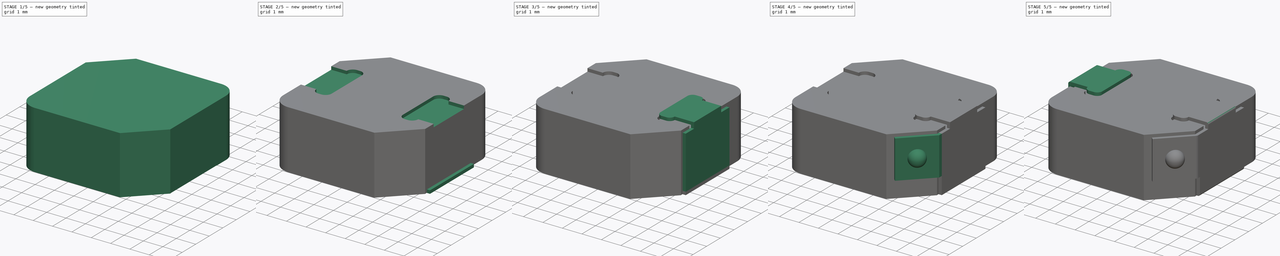
[diagram: build sequence overview — one tinted view per stage of 5, left to right]
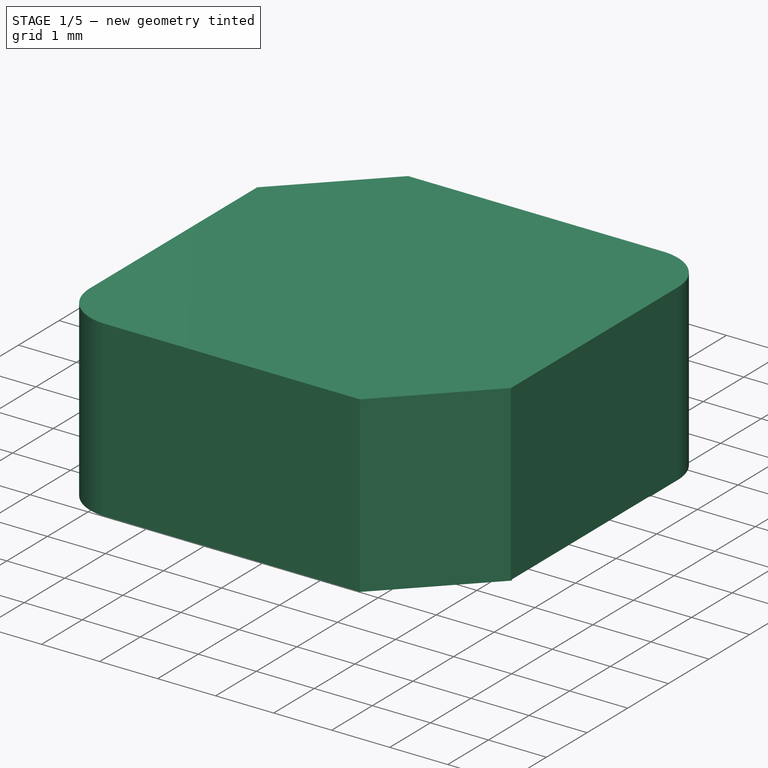
[diagram: stage 1 of 5 — iso view after this stage's code; geometry added in this stage tinted green]
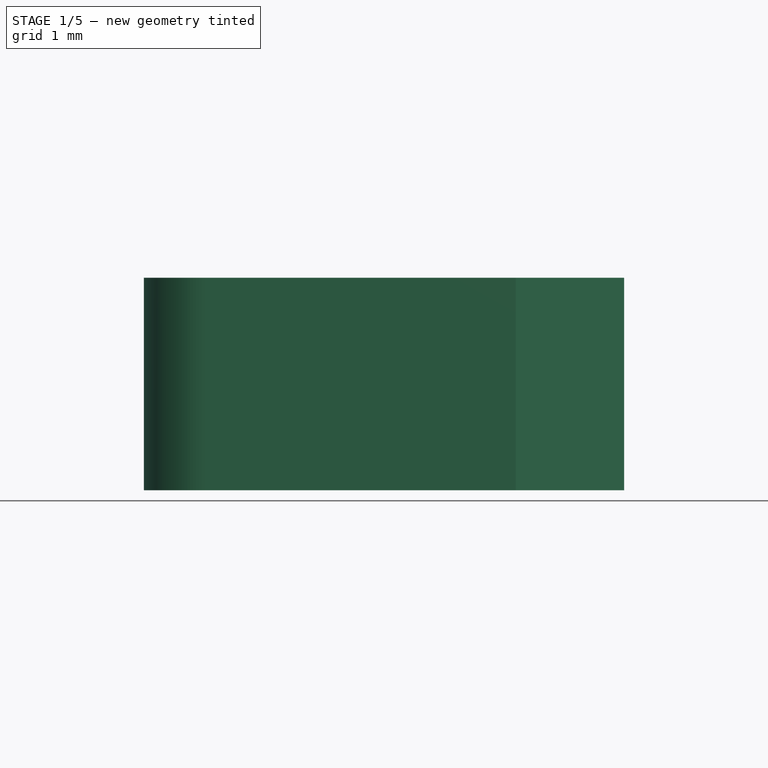
[diagram: stage 1 of 5 — front view after this stage's code; geometry added in this stage tinted green]
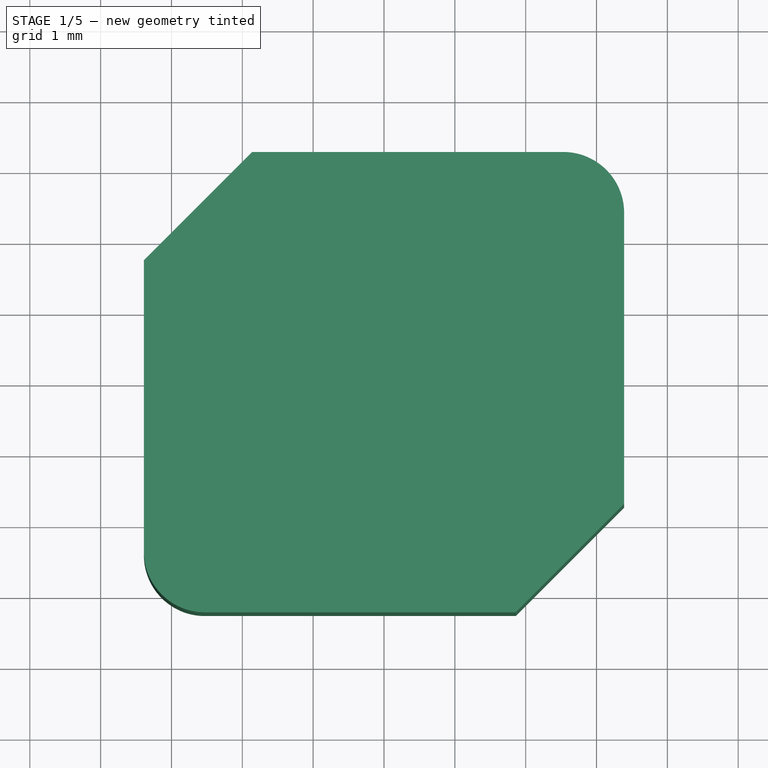
[diagram: stage 1 of 5 — top view after this stage's code; geometry added in this stage tinted green]
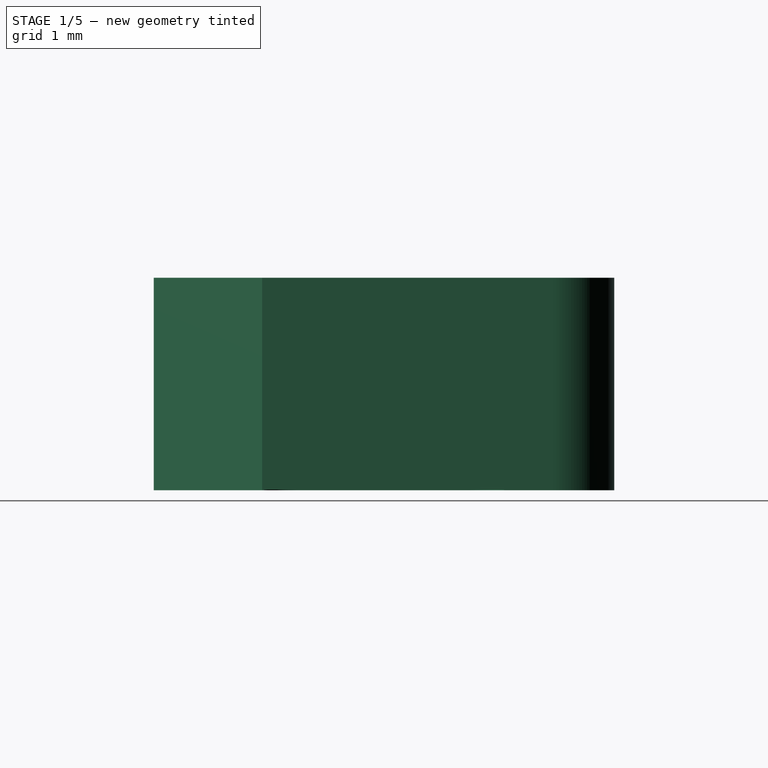
[diagram: stage 1 of 5 — right view after this stage's code; geometry added in this stage tinted green]
FCSTD DOCUMENT  (FreeCAD 1.0R38641 +468 (Git))
Label: spm6530-1
License: All rights reserved
objects: Sketcher::SketchObject×9, PartDesign::Pad×5, PartDesign::Pocket×4, PartDesign::Fillet×2, PartDesign::Body×2, PartDesign::Mirrored×2, Spreadsheet::Sheet×1, PartDesign::AdditiveSphere×1, Part::FeaturePython×1
note: 61 computed .brp shape members not serialized (recipe doc carries the construction recipe); baked Part::Feature solids carry a one-line shape summary decoded from their .brp

FEATURE [Sketcher::SketchObject] Sketch008
  ArcFitTolerance = 0
  AttachmentSupport = -> [XY_Plane001]
  FullyConstrained = true
  MakeInternals = false
  MapMode = 5
  expr: Constraints[36] = <<Master>>.thick
  expr: Constraints[37] = <<Master>>.chamfer
  expr: Constraints[38] = <<Master>>.width
  expr: Constraints[39] = <<Master>>.length
  sketch-geometry (14):
    g0: LineSegment StartX=2.53 StartY=3.25 StartZ=0 EndX=-1.86 EndY=3.25 EndZ=0
    g1: LineSegment StartX=-1.86 StartY=3.25 StartZ=0 EndX=-3.39 EndY=1.72 EndZ=0
    g2: LineSegment StartX=-3.39 StartY=1.72 StartZ=0 EndX=-3.39 EndY=-2.39 EndZ=0
    g3: LineSegment StartX=3.39 StartY=2.39 StartZ=0 EndX=3.39 EndY=-1.72 EndZ=0
    g4: LineSegment StartX=3.39 StartY=-1.72 StartZ=0 EndX=1.86 EndY=-3.25 EndZ=0
    g5: LineSegment StartX=1.86 StartY=-3.25 StartZ=0 EndX=-2.53 EndY=-3.25 EndZ=0
    g6: ArcOfCircle CenterX=2.53 CenterY=2.39 CenterZ=0 NormalX=0 NormalY=0 NormalZ=1 AngleXU=0 Radius=0.86 StartAngle=6.28319 EndAngle=7.85398
    g7: ArcOfCircle CenterX=-2.53 CenterY=-2.39 CenterZ=0 NormalX=0 NormalY=0 NormalZ=1 AngleXU=0 Radius=0.86 StartAngle=3.14159 EndAngle=4.71239
    g8: LineSegment [constr] StartX=-3.39 StartY=1.72 StartZ=0 EndX=-3.55 EndY=1.72 EndZ=0
    g9: LineSegment [constr] StartX=3.39 StartY=2.39 StartZ=0 EndX=3.55 EndY=2.39 EndZ=0
    g10: LineSegment [constr] StartX=1.86 StartY=-3.25 StartZ=0 EndX=3.39 EndY=-3.25 EndZ=0
    g11: LineSegment [constr] StartX=3.39 StartY=-1.72 StartZ=0 EndX=3.39 EndY=-3.25 EndZ=0
    g12: LineSegment [constr] StartX=-1.86 StartY=3.25 StartZ=0 EndX=-3.39 EndY=3.25 EndZ=0
    g13: LineSegment [constr] StartX=-3.39 StartY=3.25 StartZ=0 EndX=-3.39 EndY=1.72 EndZ=0
  constraints (41):
    c: Coincident(g0,g1)
    c: Coincident(g1,g2)
    c: Coincident(g3,g4)
    c: Coincident(g4,g5)
    c: Vertical(g3)
    c: Horizontal(g0)
    c: Vertical(g2)
    c: Coincident(g7,g2)
    c: Coincident(g7,g5)
    c: Horizontal(g5)
    c: Coincident(g0,g6)
    c: Coincident(g3,g6)
    c: Coincident(g8,g1)
    c: Horizontal(g8)
    c: Coincident(g9,g3)
    c: Horizontal(g9)
    c: Equal(g8,g9)
    c: Equal(g1,g4)
    c: Equal(g7,g6)
    c: Tangent(g2,g7)
    c: Tangent(g7,g5)
    c: Tangent(g0,g6)
    c: Tangent(g6,g3)
    c: Radius(g7) = 0.86
    c: Coincident(g10,g4)
    c: Horizontal(g10)
    c: Coincident(g11,g3)
    c: Coincident(g10,g11)
    c: Vertical(g11)
    c: Equal(g10,g11)
    c: Coincident(g12,g0)
    c: Horizontal(g12)
    c: Coincident(g13,g12)
    c: Coincident(g13,g1)
    c: Vertical(g13)
    c: Equal(g12,g13)
    c: Distance(g9,g9) = 0.16
    c: Distance(g12,g12) = 1.53
    c: DistanceY(g10,g0) = 6.5
    c: DistanceX(g8,g9) = 7.1
    c: Symmetric(g12,g10,g-1)
FEATURE [PartDesign::Pad] Pad004
  Direction = (0,0,1)
  Length = 3
  Length2 = 10
  Profile = -> Sketch008
  ReferenceAxis = -> Sketch008 [N_Axis]
  Suppressed = false
  Type = 0
  expr: Length = <<Master>>.height
FEATURE [Sketcher::SketchObject] Sketch001
  ArcFitTolerance = 0
  AttachmentSupport = -> [XY_Plane001]
  FullyConstrained = true
  MakeInternals = false
  MapMode = 5
  expr: Constraints[17] = <<Master>>.length / 2
  sketch-geometry (6):
    g0: LineSegment StartX=3.55 StartY=1.695 StartZ=0 EndX=2.29 EndY=1.695 EndZ=0
    g1: LineSegment StartX=3.55 StartY=1.695 StartZ=0 EndX=3.55 EndY=-1.695 EndZ=0
    g2: LineSegment StartX=3.55 StartY=-1.695 StartZ=0 EndX=2.29 EndY=-1.695 EndZ=0
    g3: ArcOfCircle CenterX=2.29 CenterY=1.215 CenterZ=0 NormalX=0 NormalY=0 NormalZ=1 AngleXU=0 Radius=0.48 StartAngle=1.5708 EndAngle=3.14159
    g4: ArcOfCircle CenterX=2.29 CenterY=-1.215 CenterZ=0 NormalX=0 NormalY=0 NormalZ=1 AngleXU=0 Radius=0.48 StartAngle=3.14159 EndAngle=4.71239
    g5: LineSegment StartX=1.81 StartY=1.215 StartZ=0 EndX=1.81 EndY=-1.215 EndZ=0
  constraints (19):
    c: Horizontal(g0)
    c: Coincident(g0,g1)
    c: Coincident(g1,g2)
    c: Horizontal(g2)
    c: Coincident(g3,g0)
    c: Coincident(g4,g2)
    c: Coincident(g5,g3)
    c: Coincident(g5,g4)
    c: Vertical(g5)
    c: Equal(g0,g2)
    c: Equal(g3,g4)
    c: Tangent(g3,g5)
    c: Tangent(g5,g4)
    c: Tangent(g3,g0)
    c: DistanceX(g4,g1) = 1.74
    c: Symmetric(g0,g1,g-1)
    c: Radius(g3) = 0.48
    c: DistanceX(g-1,g1) = 3.55
    c: DistanceY(g1,g1) = 3.39
FEATURE [PartDesign::Pocket] Pocket002
  BaseFeature = -> Pad004
  Direction = (0,0,-1)
  Length = 0.01
  Length2 = 5
  Profile = -> Sketch001
  ReferenceAxis = -> Sketch001 [N_Axis]
  Reversed = true
  Suppressed = false
  Type = 0
  expr: Length = <<Master>>.thick - <<Master>>.offset
FEATURE [PartDesign::Mirrored] Mirrored
  BaseFeature = -> Pocket002
  MirrorPlane = -> Sketch001 [V_Axis]
  Originals = -> [Pocket002]
  Suppressed = false
  TransformMode = 0
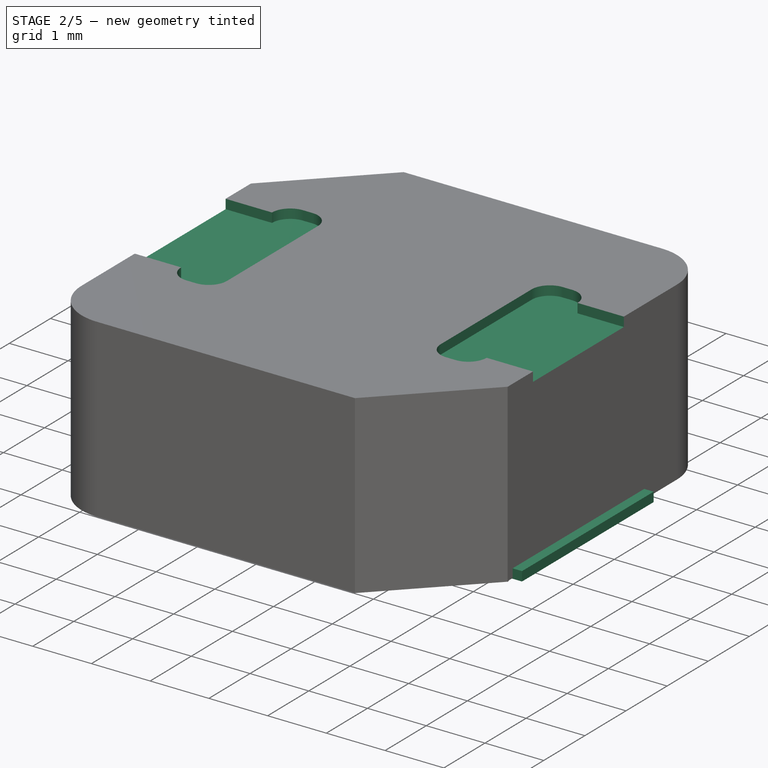
[diagram: stage 2 of 5 — iso view after this stage's code; geometry added in this stage tinted green]
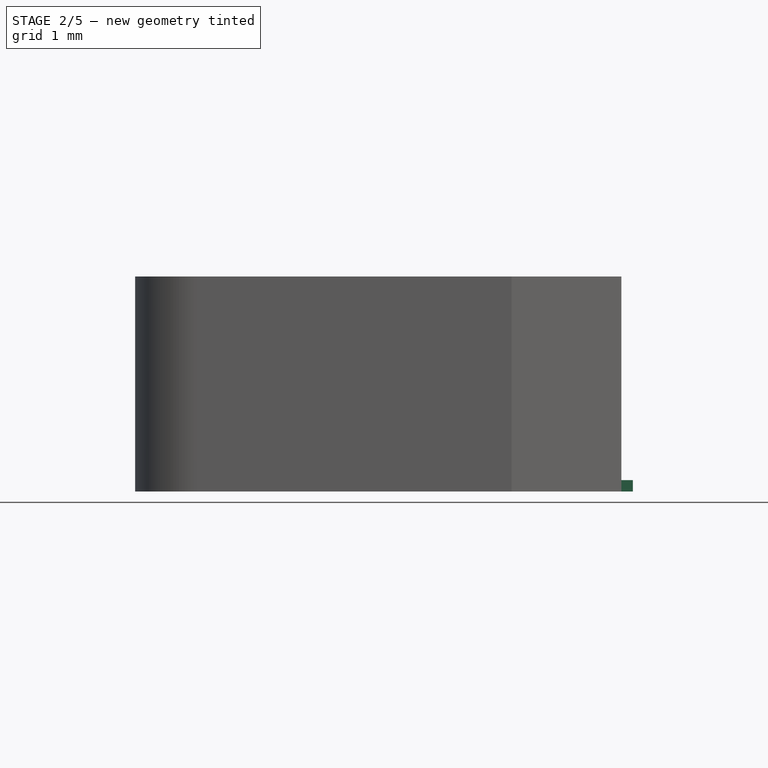
[diagram: stage 2 of 5 — front view after this stage's code; geometry added in this stage tinted green]
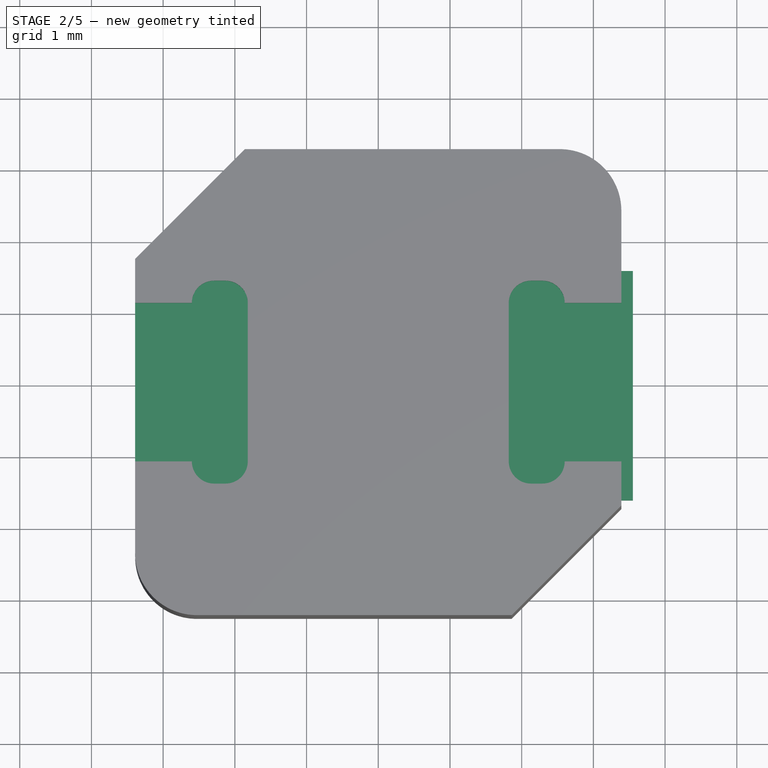
[diagram: stage 2 of 5 — top view after this stage's code; geometry added in this stage tinted green]
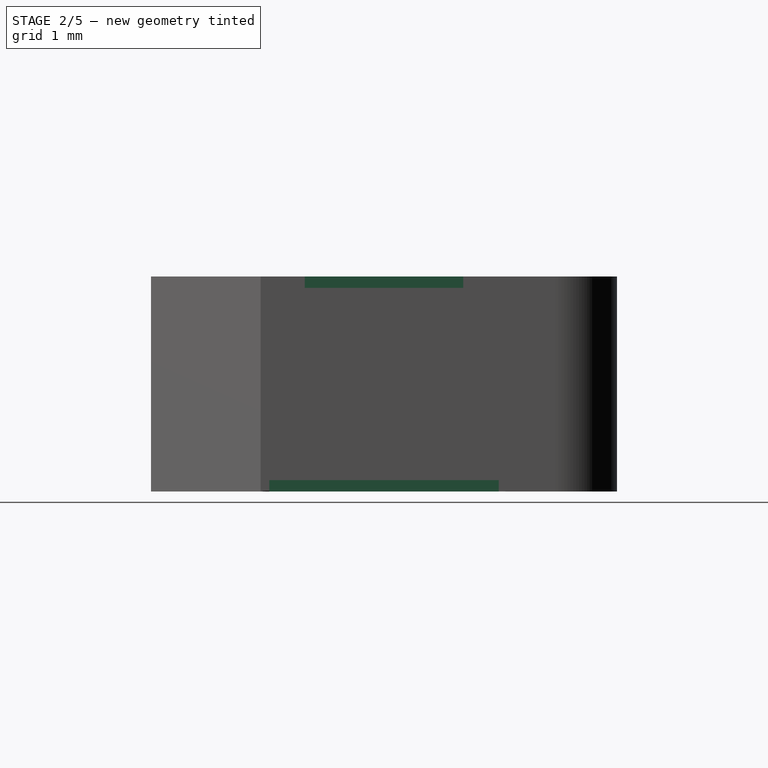
[diagram: stage 2 of 5 — right view after this stage's code; geometry added in this stage tinted green]
FEATURE [Spreadsheet::Sheet] Spreadsheet  label="Master"
  cells = A1='Constants; A2='length; B2(length)==7.1 mm; C2='Length including pins (x); A3='width; B3(width)==6.5 mm; C3='Width of housing (y); A4='height; B4(height)==3 mm; C4='Height of ferrite (z); A5='offset; B5(offset)==0.15 mm; C5='Offset to bottom of ferrite; A6='chamfer; B6(chamfer)==1.53 mm; C6='Body corner chamfer; A8='pin bot width; B8(pin_bot_w)==3.2 mm; C8='Width of pin bottom (y); A9='thick; B9(thick)==0.16 mm; C9='Thickness of pins; A10='pin top width; B10(pin_top_w)==1.99 mm; C10='Width of pin top (y); A12='Calculated; A13='ferrite length; B13(ferrite_l)==length - 2 * thick; C13='Length of ferrite; A14='top; B14(top)==height + offset; C14='Top of part
FEATURE [Sketcher::SketchObject] Sketch003
  ArcFitTolerance = 0
  AttachmentSupport = -> [XY_Plane]
  FullyConstrained = true
  MakeInternals = false
  MapMode = 5
  expr: Constraints[17] = <<Master>>.length / 2
  expr: Constraints[18] = <<Master>>.pin_bot_w
  sketch-geometry (6):
    g0: LineSegment StartX=3.55 StartY=1.6 StartZ=0 EndX=2.29 EndY=1.6 EndZ=0
    g1: LineSegment StartX=3.55 StartY=1.6 StartZ=0 EndX=3.55 EndY=-1.6 EndZ=0
    g2: LineSegment StartX=3.55 StartY=-1.6 StartZ=0 EndX=2.29 EndY=-1.6 EndZ=0
    g3: ArcOfCircle CenterX=2.29 CenterY=1.31 CenterZ=0 NormalX=0 NormalY=0 NormalZ=1 AngleXU=0 Radius=0.29 StartAngle=1.5708 EndAngle=3.14159
    g4: ArcOfCircle CenterX=2.29 CenterY=-1.31 CenterZ=0 NormalX=0 NormalY=0 NormalZ=1 AngleXU=0 Radius=0.29 StartAngle=3.14159 EndAngle=4.71239
    g5: LineSegment StartX=2 StartY=1.31 StartZ=0 EndX=2 EndY=-1.31 EndZ=0
  constraints (19):
    c: Horizontal(g0)
    c: Coincident(g0,g1)
    c: Coincident(g1,g2)
    c: Horizontal(g2)
    c: Coincident(g3,g0)
    c: Coincident(g4,g2)
    c: Coincident(g5,g3)
    c: Coincident(g5,g4)
    c: Vertical(g5)
    c: Equal(g0,g2)
    c: Equal(g3,g4)
    c: Tangent(g3,g5)
    c: Tangent(g5,g4)
    c: Tangent(g3,g0)
    c: Symmetric(g0,g1,g-1)
    c: Radius(g3) = 0.29
    c: DistanceX(g4,g1) = 1.55
    c: DistanceX(g-1,g1) = 3.55
    c: DistanceY(g1,g1) = 3.2
FEATURE [PartDesign::Pad] Pad
  Direction = (0,0,1)
  Length = 0.16
  Length2 = 10
  Profile = -> Sketch003
  ReferenceAxis = -> Sketch003 [N_Axis]
  Suppressed = false
  Type = 0
  expr: Length = <<Master>>.thick
FEATURE [Sketcher::SketchObject] Sketch002
  ArcFitTolerance = 0
  AttachmentOffset = pos=(0,0,3) rot=(0,0,1;0rad)
  AttachmentSupport = -> [XY_Plane001]
  FullyConstrained = true
  MakeInternals = false
  MapMode = 5
  Placement = pos=(0,0,3) rot=(0,0,1;0rad)
  expr: .AttachmentOffset.Base.z = <<Master>>.height
  expr: Constraints[32] = <<Master>>.length / 2
  sketch-geometry (10):
    g0: LineSegment StartX=2.6 StartY=1.105 StartZ=0 EndX=3.55 EndY=1.105 EndZ=0
    g1: LineSegment StartX=3.55 StartY=1.105 StartZ=0 EndX=3.55 EndY=-1.105 EndZ=0
    g2: LineSegment StartX=3.55 StartY=-1.105 StartZ=0 EndX=2.6 EndY=-1.105 EndZ=0
    g3: ArcOfCircle CenterX=2.29 CenterY=-1.105 CenterZ=0 NormalX=0 NormalY=0 NormalZ=1 AngleXU=0 Radius=0.31 StartAngle=4.71239 EndAngle=6.28319
    g4: LineSegment StartX=2.29 StartY=-1.415 StartZ=0 EndX=2.13 EndY=-1.415 EndZ=0
    g5: ArcOfCircle CenterX=2.13 CenterY=-1.105 CenterZ=0 NormalX=0 NormalY=0 NormalZ=1 AngleXU=0 Radius=0.31 StartAngle=3.14159 EndAngle=4.71239
    g6: ArcOfCircle CenterX=2.29 CenterY=1.105 CenterZ=0 NormalX=0 NormalY=0 NormalZ=1 AngleXU=0 Radius=0.31 StartAngle=-9e-16 EndAngle=1.5708
    g7: LineSegment StartX=2.29 StartY=1.415 StartZ=0 EndX=2.13 EndY=1.415 EndZ=0
    g8: ArcOfCircle CenterX=2.13 CenterY=1.105 CenterZ=0 NormalX=0 NormalY=0 NormalZ=1 AngleXU=0 Radius=0.31 StartAngle=1.5708 EndAngle=3.14159
    g9: LineSegment StartX=1.82 StartY=1.105 StartZ=0 EndX=1.82 EndY=-1.105 EndZ=0
  constraints (33):
    c: Horizontal(g0)
    c: Coincident(g0,g1)
    c: Coincident(g1,g2)
    c: Horizontal(g2)
    c: Coincident(g4,g3)
    c: Horizontal(g4)
    c: Coincident(g5,g4)
    c: Coincident(g6,g0)
    c: Coincident(g7,g6)
    c: Horizontal(g7)
    c: Tangent(g7,g6)
    c: Coincident(g8,g7)
    c: Coincident(g9,g8)
    c: Coincident(g9,g5)
    c: Vertical(g9)
    c: Equal(g7,g4)
    c: Coincident(g2,g3)
    c: Perpendicular(g6,g0)
    c: Perpendicular(g2,g3)
    c: Equal(g8,g5)
    c: Tangent(g8,g9)
    c: Tangent(g9,g5)
    c: Equal(g6,g3)
    c: Equal(g6,g8)
    c: Tangent(g4,g3)
    c: Tangent(g5,g4)
    c: Equal(g0,g2)
    c: Symmetric(g0,g1,g-1)
    c: Radius(g3) = 0.31
    c: DistanceX(g0) = 0.95
    c: DistanceX(g8,g0) = 1.73
    c: DistanceY(g1,g1) = 2.21
    c: DistanceX(g-1,g1) = 3.55
FEATURE [PartDesign::Pocket] Pocket003
  BaseFeature = -> Mirrored
  Direction = (0,0,-1)
  Length = 0.16
  Length2 = 5
  Profile = -> Sketch002
  ReferenceAxis = -> Sketch002 [N_Axis]
  Suppressed = false
  Type = 0
  expr: Length = <<Master>>.thick
FEATURE [PartDesign::Mirrored] Mirrored001
  BaseFeature = -> Pocket003
  MirrorPlane = -> Sketch002 [V_Axis]
  Originals = -> [Pocket003]
  Suppressed = false
  TransformMode = 0
FEATURE [PartDesign::Body] Body001
  AllowCompound = false
  Group = -> [Sketch008,Pad004,Sketch001,Pocket002,Mirrored,Sketch002,Pocket003,Mirrored001]
  Origin = -> Origin001
  Placement = pos=(0,0,0.15) rot=(0,0,1;0rad)
  Tip = -> Mirrored001
  expr: .Placement.Base.z = <<Master>>.offset
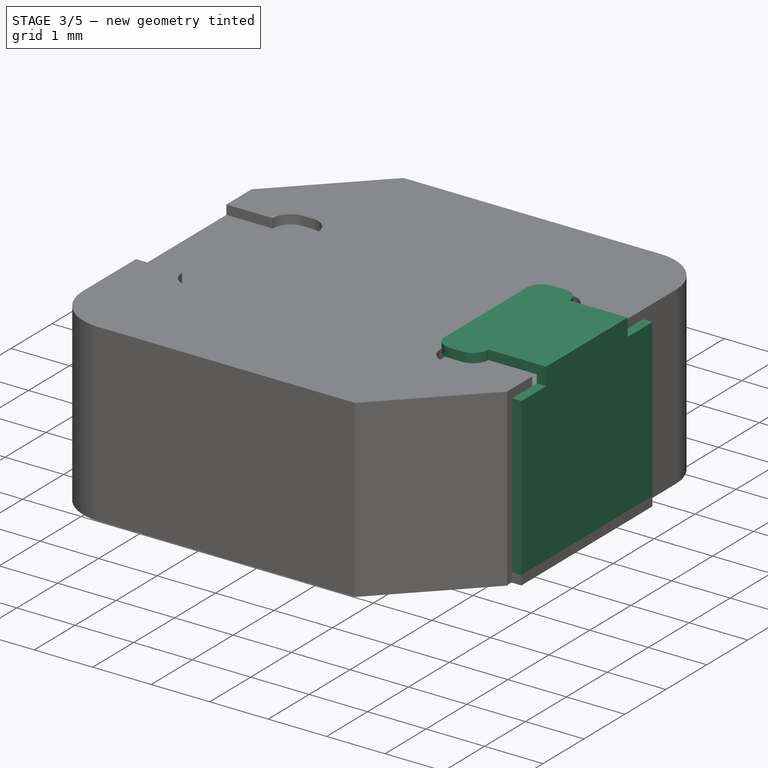
[diagram: stage 3 of 5 — iso view after this stage's code; geometry added in this stage tinted green]
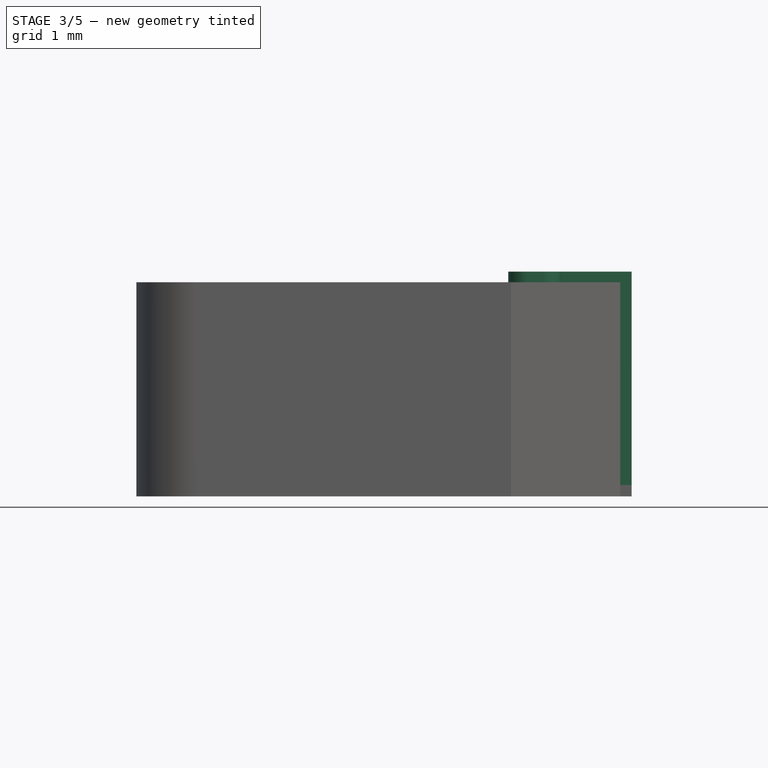
[diagram: stage 3 of 5 — front view after this stage's code; geometry added in this stage tinted green]
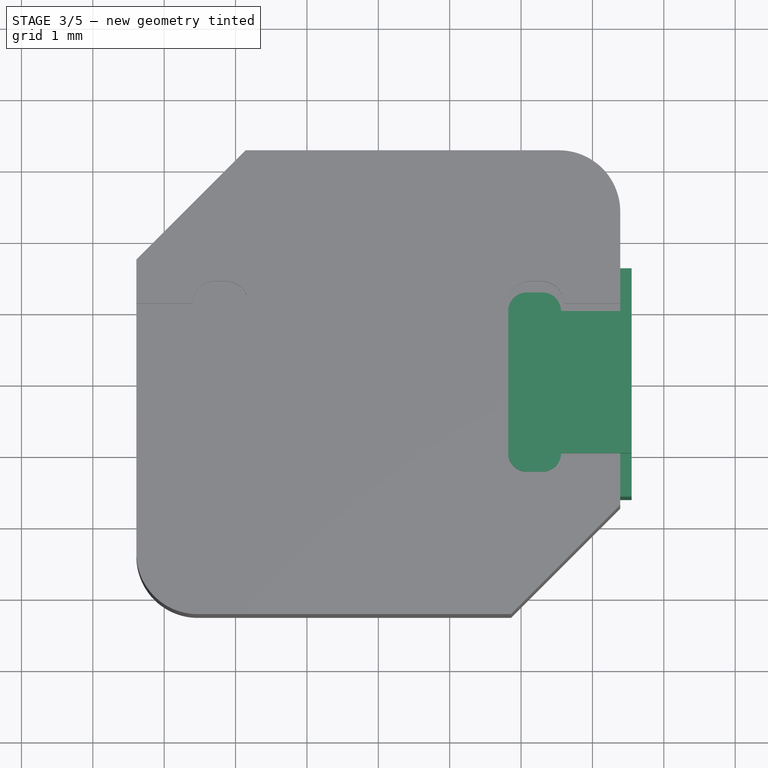
[diagram: stage 3 of 5 — top view after this stage's code; geometry added in this stage tinted green]
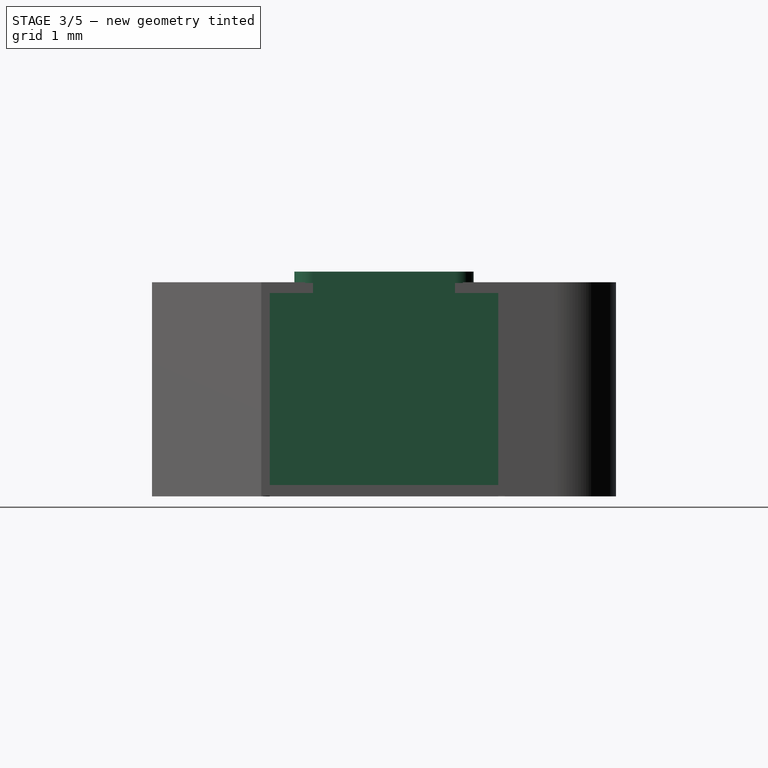
[diagram: stage 3 of 5 — right view after this stage's code; geometry added in this stage tinted green]
FEATURE [Sketcher::SketchObject] Sketch004
  ArcFitTolerance = 0
  AttachmentSupport = -> [XY_Plane]
  FullyConstrained = true
  MakeInternals = false
  MapMode = 5
  expr: Constraints[10] = <<Master>>.length / 2
  expr: Constraints[7] = <<Master>>.thick
  expr: Constraints[9] = <<Master>>.pin_bot_w
  sketch-geometry (4):
    g0: LineSegment StartX=3.55 StartY=1.6 StartZ=0 EndX=3.39 EndY=1.6 EndZ=0
    g1: LineSegment StartX=3.39 StartY=1.6 StartZ=0 EndX=3.39 EndY=-1.6 EndZ=0
    g2: LineSegment StartX=3.39 StartY=-1.6 StartZ=0 EndX=3.55 EndY=-1.6 EndZ=0
    g3: LineSegment StartX=3.55 StartY=-1.6 StartZ=0 EndX=3.55 EndY=1.6 EndZ=0
  constraints (11):
    c: Coincident(g0,g1)
    c: Coincident(g1,g2)
    c: Coincident(g2,g3)
    c: Horizontal(g0)
    c: Horizontal(g2)
    c: Coincident(g3,g0)
    c: Symmetric(g0,g2,g-1)
    c: Distance(g0,g0) = 0.16
    c: Vertical(g1)
    c: DistanceY(g3,g3) = 3.2
    c: DistanceX(g-1,g2) = 3.55
FEATURE [PartDesign::Pad] Pad001
  BaseFeature = -> Pad
  Direction = (0,0,1)
  Length = 3.15
  Length2 = 10
  Profile = -> Sketch004
  ReferenceAxis = -> Sketch004 [N_Axis]
  Suppressed = false
  Type = 0
  expr: Length = <<Master>>.top
FEATURE [Sketcher::SketchObject] Sketch005
  ArcFitTolerance = 0
  AttachmentOffset = pos=(0,0,3.15) rot=(0,0,1;0rad)
  AttachmentSupport = -> [XY_Plane]
  FullyConstrained = true
  MakeInternals = false
  MapMode = 5
  Placement = pos=(0,0,3.15) rot=(0,0,1;0rad)
  expr: .AttachmentOffset.Base.z = <<Master>>.top
  expr: Constraints[31] = <<Master>>.length / 2
  expr: Constraints[32] = <<Master>>.pin_top_w
  sketch-geometry (10):
    g0: LineSegment StartX=2.56 StartY=0.995 StartZ=0 EndX=3.55 EndY=0.995 EndZ=0
    g1: LineSegment StartX=3.55 StartY=0.995 StartZ=0 EndX=3.55 EndY=-0.995 EndZ=0
    g2: LineSegment StartX=3.55 StartY=-0.995 StartZ=0 EndX=2.56 EndY=-0.995 EndZ=0
    g3: ArcOfCircle CenterX=2.3 CenterY=-0.995 CenterZ=0 NormalX=0 NormalY=0 NormalZ=1 AngleXU=0 Radius=0.26 StartAngle=4.71239 EndAngle=6.28319
    g4: LineSegment StartX=2.3 StartY=-1.255 StartZ=0 EndX=2.08 EndY=-1.255 EndZ=0
    g5: ArcOfCircle CenterX=2.08 CenterY=-0.995 CenterZ=0 NormalX=0 NormalY=0 NormalZ=1 AngleXU=0 Radius=0.26 StartAngle=3.14159 EndAngle=4.71239
    g6: ArcOfCircle CenterX=2.3 CenterY=0.995 CenterZ=0 NormalX=0 NormalY=0 NormalZ=1 AngleXU=0 Radius=0.26 StartAngle=0 EndAngle=1.5708
    g7: LineSegment StartX=2.3 StartY=1.255 StartZ=0 EndX=2.08 EndY=1.255 EndZ=0
    g8: ArcOfCircle CenterX=2.08 CenterY=0.995 CenterZ=0 NormalX=0 NormalY=0 NormalZ=1 AngleXU=0 Radius=0.26 StartAngle=1.5708 EndAngle=3.14159
    g9: LineSegment StartX=1.82 StartY=0.995 StartZ=0 EndX=1.82 EndY=-0.995 EndZ=0
  constraints (33):
    c: Horizontal(g0)
    c: Coincident(g0,g1)
    c: Coincident(g1,g2)
    c: Horizontal(g2)
    c: Coincident(g4,g3)
    c: Horizontal(g4)
    c: Coincident(g5,g4)
    c: Coincident(g6,g0)
    c: Coincident(g7,g6)
    c: Horizontal(g7)
    c: Tangent(g7,g6)
    c: Coincident(g8,g7)
    c: Coincident(g9,g8)
    c: Coincident(g9,g5)
    c: Vertical(g9)
    c: Equal(g7,g4)
    c: Coincident(g2,g3)
    c: Perpendicular(g6,g0)
    c: Perpendicular(g2,g3)
    c: Equal(g8,g5)
    c: Tangent(g8,g9)
    c: Tangent(g9,g5)
    c: Equal(g6,g3)
    c: Equal(g6,g8)
    c: Tangent(g4,g3)
    c: Tangent(g5,g4)
    c: Equal(g0,g2)
    c: Symmetric(g0,g1,g-1)
    c: Radius(g3) = 0.26
    c: DistanceX(g8,g0) = 1.73
    c: DistanceX(g0) = 0.99
    c: DistanceX(g-1,g1) = 3.55
    c: DistanceY(g1,g1) = 1.99
FEATURE [PartDesign::Pad] Pad002
  BaseFeature = -> Pad001
  Direction = (0,0,1)
  Length = 0.16
  Length2 = 10
  Profile = -> Sketch005
  ReferenceAxis = -> Sketch005 [N_Axis]
  Reversed = true
  Suppressed = false
  Type = 0
  expr: Length = <<Master>>.thick
FEATURE [Sketcher::SketchObject] Sketch006
  ArcFitTolerance = 0
  AttachmentOffset = pos=(0,0,3.15) rot=(0,0,1;0rad)
  AttachmentSupport = -> [XY_Plane]
  FullyConstrained = true
  MakeInternals = false
  MapMode = 5
  Placement = pos=(0,0,3.15) rot=(0,0,1;0rad)
  expr: .AttachmentOffset.Base.z = <<Master>>.top
  expr: Constraints[20] = <<Master>>.thick
  expr: Constraints[21] = <<Master>>.length / 2
  expr: Constraints[23] = <<Master>>.pin_bot_w
  expr: Constraints[24] = <<Master>>.pin_top_w
  sketch-geometry (9):
    g0: LineSegment StartX=3.39 StartY=-0.995 StartZ=0 EndX=3.55 EndY=-0.995 EndZ=0
    g1: LineSegment StartX=3.55 StartY=-0.995 StartZ=0 EndX=3.55 EndY=-1.6 EndZ=0
    g2: LineSegment StartX=3.55 StartY=-1.6 StartZ=0 EndX=3.39 EndY=-1.6 EndZ=0
    g3: LineSegment StartX=3.39 StartY=-1.6 StartZ=0 EndX=3.39 EndY=-0.995 EndZ=0
    g4: LineSegment StartX=3.39 StartY=0.995 StartZ=0 EndX=3.55 EndY=0.995 EndZ=0
    g5: LineSegment StartX=3.55 StartY=0.995 StartZ=0 EndX=3.55 EndY=1.6 EndZ=0
    g6: LineSegment StartX=3.55 StartY=1.6 StartZ=0 EndX=3.39 EndY=1.6 EndZ=0
    g7: LineSegment StartX=3.39 StartY=1.6 StartZ=0 EndX=3.39 EndY=0.995 EndZ=0
    g8: LineSegment [constr] StartX=3.55 StartY=0.995 StartZ=0 EndX=3.55 EndY=-0.995 EndZ=0
  constraints (25):
    c: Coincident(g0,g1)
    c: Coincident(g1,g2)
    c: Coincident(g2,g3)
    c: Coincident(g3,g0)
    c: Horizontal(g0)
    c: Horizontal(g2)
    c: Vertical(g1)
    c: Vertical(g3)
    c: Coincident(g4,g5)
    c: Coincident(g5,g6)
    c: Coincident(g6,g7)
    c: Coincident(g7,g4)
    c: Horizontal(g6)
    c: Vertical(g5)
    c: Vertical(g7)
    c: Coincident(g8,g4)
    c: Coincident(g8,g0)
    c: Symmetric(g4,g0,g-1)
    c: Horizontal(g4)
    c: Equal(g6,g0)
    c: DistanceX(g6,g6) = 0.16
    c: DistanceX(g-1,g1) = 3.55
    c: Equal(g1,g5)
    c: DistanceY(g1,g5) = 3.2
    c: DistanceY(g8,g8) = 1.99
FEATURE [PartDesign::Pocket] Pocket
  BaseFeature = -> Pad002
  Direction = (0,0,-1)
  Length = 0.3
  Length2 = 5
  Profile = -> Sketch006
  ReferenceAxis = -> Sketch006 [N_Axis]
  Suppressed = false
  Type = 0
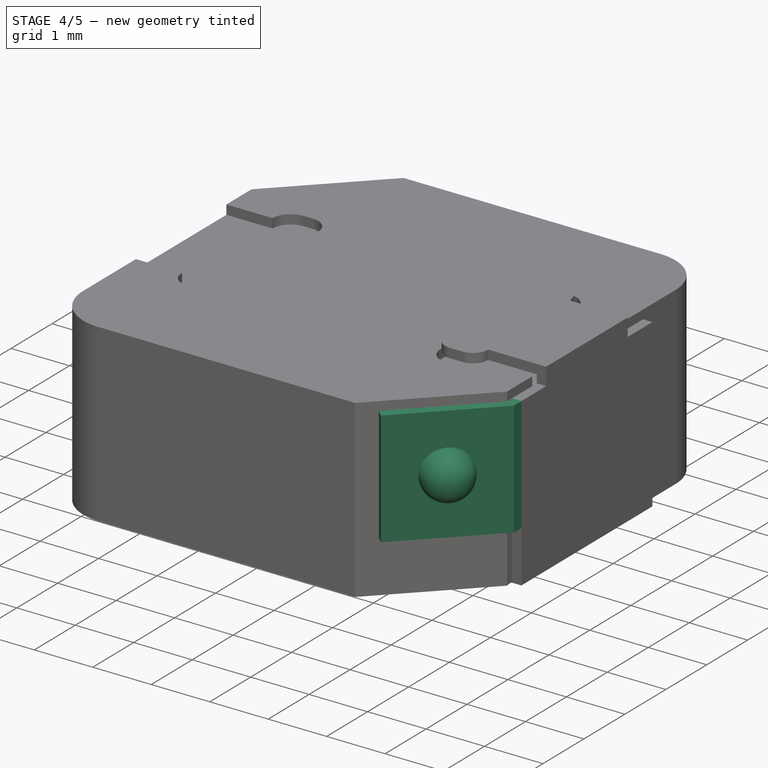
[diagram: stage 4 of 5 — iso view after this stage's code; geometry added in this stage tinted green]
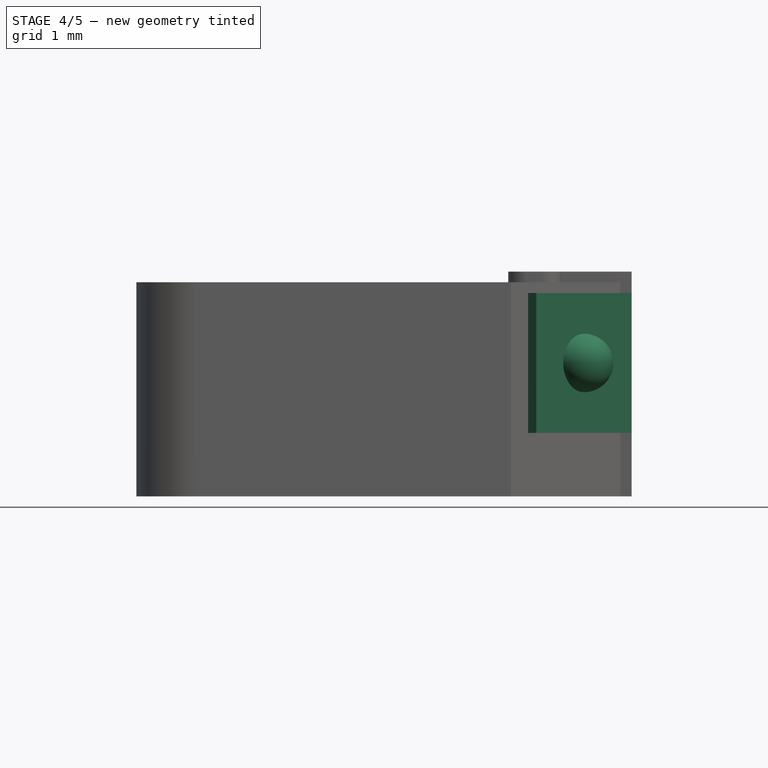
[diagram: stage 4 of 5 — front view after this stage's code; geometry added in this stage tinted green]
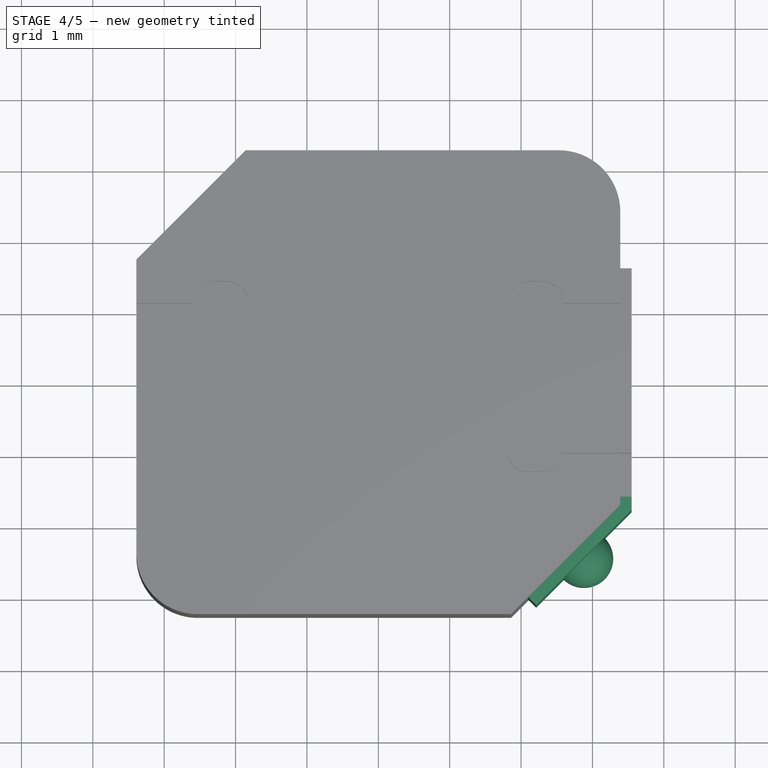
[diagram: stage 4 of 5 — top view after this stage's code; geometry added in this stage tinted green]
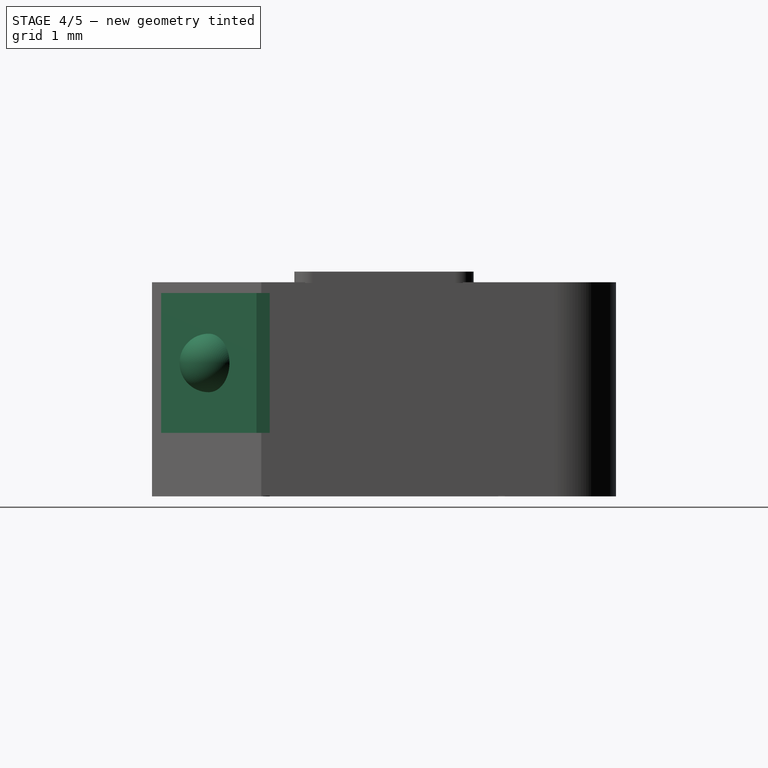
[diagram: stage 4 of 5 — right view after this stage's code; geometry added in this stage tinted green]
FEATURE [Sketcher::SketchObject] Sketch007
  ArcFitTolerance = 0
  AttachmentSupport = -> [Pocket]
  FullyConstrained = true
  MakeInternals = false
  MapMode = 5
  Placement = pos=(0,0,2.85) rot=(0,0,1;0rad)
  expr: Constraints[19] = <<Master>>.chamfer
  expr: Constraints[20] = <<Master>>.width / 2
  expr: Constraints[21] = <<Master>>.length / 2
  expr: Constraints[22] = <<Master>>.thick
  expr: Constraints[23] = <<Master>>.pin_bot_w / 2
  sketch-geometry (9):
    g0: LineSegment StartX=3.39 StartY=-1.6 StartZ=0 EndX=3.39 EndY=-1.72 EndZ=0
    g1: LineSegment StartX=2.1 StartY=-3.01 StartZ=0 EndX=2.21314 EndY=-3.12314 EndZ=0
    g2: LineSegment StartX=2.21314 StartY=-3.12314 StartZ=0 EndX=3.55 EndY=-1.78627 EndZ=0
    g3: LineSegment StartX=3.55 StartY=-1.78627 StartZ=0 EndX=3.55 EndY=-1.6 EndZ=0
    g4: LineSegment [constr] StartX=3.39 StartY=-1.72 StartZ=0 EndX=3.39 EndY=-3.01 EndZ=0
    g5: LineSegment [constr] StartX=2.1 StartY=-3.01 StartZ=0 EndX=3.39 EndY=-3.01 EndZ=0
    g6: LineSegment [constr] StartX=3.39 StartY=-3.01 StartZ=0 EndX=3.39 EndY=-3.25 EndZ=0
    g7: LineSegment StartX=3.39 StartY=-1.72 StartZ=0 EndX=2.1 EndY=-3.01 EndZ=0
    g8: LineSegment StartX=3.39 StartY=-1.6 StartZ=0 EndX=3.55 EndY=-1.6 EndZ=0
  constraints (26):
    c: Vertical(g0)
    c: Coincident(g1,g2)
    c: Coincident(g2,g3)
    c: Vertical(g3)
    c: Coincident(g4,g0)
    c: Vertical(g4)
    c: Coincident(g5,g1)
    c: Coincident(g5,g4)
    c: Horizontal(g5)
    c: Equal(g4,g5)
    c: Coincident(g6,g4)
    c: Vertical(g6)
    c: Coincident(g7,g0)
    c: Coincident(g7,g1)
    c: Parallel(g7,g2)
    c: Perpendicular(g7,g1)
    c: Coincident(g8,g0)
    c: Coincident(g8,g3)
    c: Equal(g8,g1)
    c: DistanceY(g6,g0) = 1.53
    c: DistanceY(g6,g-1) = 3.25
    c: DistanceX(g-1,g3) = 3.55
    c: DistanceX(g8,g8) = 0.16
    c: DistanceY(g3,g-1) = 1.6
    c: DistanceY(g6,g6) = 0.24
    c: Horizontal(g8)
FEATURE [PartDesign::Pad] Pad003
  BaseFeature = -> Pocket
  Direction = (0,0,1)
  Length = 1.96
  Length2 = 10
  Profile = -> Sketch007
  ReferenceAxis = -> Sketch007 [N_Axis]
  Reversed = true
  Suppressed = false
  Type = 0
FEATURE [Sketcher::SketchObject] Sketch
  ArcFitTolerance = 1e-06
  AttachmentSupport = -> [Pad003]
  ExternalGeometry = -> [Pad003]
  FullyConstrained = true
  MakeInternals = false
  MapMode = 5
  Placement = pos=(2.66814,-2.66814,0) rot=(0.862856,0.357407,0.357407;1.71777rad)
  sketch-geometry (5):
    g0: Circle CenterX=0.301838 CenterY=1.87 CenterZ=0 NormalX=0 NormalY=0 NormalZ=1 AngleXU=0 Radius=0.2
    g1: LineSegment [constr] StartX=0.301838 StartY=1.87 StartZ=0 EndX=1.24714 EndY=2.85 EndZ=0
    g2: LineSegment [constr] StartX=0.301838 StartY=1.87 StartZ=0 EndX=-0.643467 EndY=0.89 EndZ=0
    g3: LineSegment [constr] StartX=0.301838 StartY=1.87 StartZ=0 EndX=-0.643467 EndY=2.85 EndZ=0
    g4: LineSegment [constr] StartX=0.301838 StartY=1.87 StartZ=0 EndX=1.24714 EndY=0.89 EndZ=0
  constraints (11):
    c: Radius(g0) = 0.2
    c: Coincident(g1,g0)
    c: Coincident(g1,g-4)
    c: Coincident(g2,g0)
    c: Coincident(g2,g-6)
    c: Coincident(g3,g0)
    c: Coincident(g3,g-3)
    c: Coincident(g4,g0)
    c: Coincident(g4,g-5)
    c: Equal(g3,g4)
    c: Equal(g1,g2)
FEATURE [PartDesign::Pocket] Pocket001
  BaseFeature = -> Pad003
  Direction = (-0.707107,0.707107,1e-16)
  Length = 5
  Length2 = 5
  Profile = -> Sketch
  ReferenceAxis = -> Sketch [N_Axis]
  Suppressed = false
  Type = 1
FEATURE [PartDesign::AdditiveSphere] Sphere
  Angle1 = -90
  Angle2 = 90
  Angle3 = 180
  AttacherType = Attacher::AttachEngine3D
  AttachmentOffset = pos=(0,0,0) rot=(1,0,0;1.5708rad)
  AttachmentSupport = -> [Pocket001]
  BaseFeature = -> Pocket001
  MapMode = 11
  Placement = pos=(2.88157,-2.45471,1.87) rot=(0.678598,0.281085,0.678598;3.68962rad)
  Radius = 0.41
  Suppressed = false
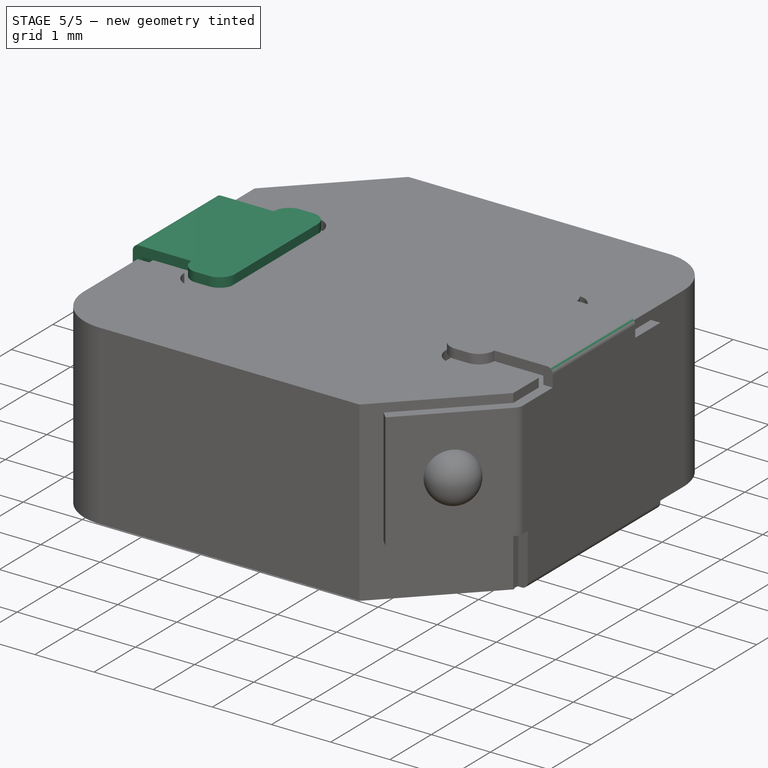
[diagram: stage 5 of 5 — iso view after this stage's code; geometry added in this stage tinted green]
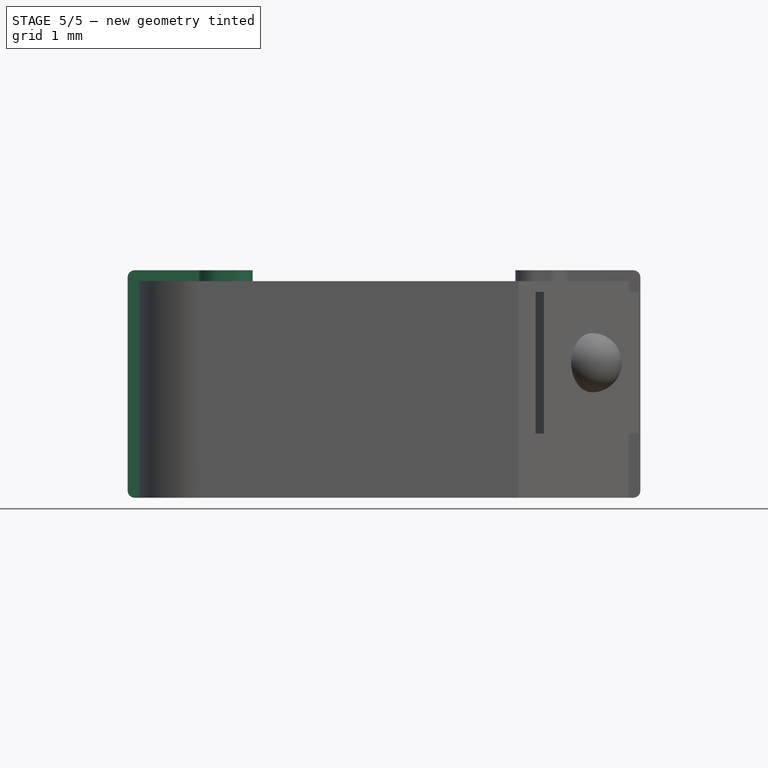
[diagram: stage 5 of 5 — front view after this stage's code; geometry added in this stage tinted green]
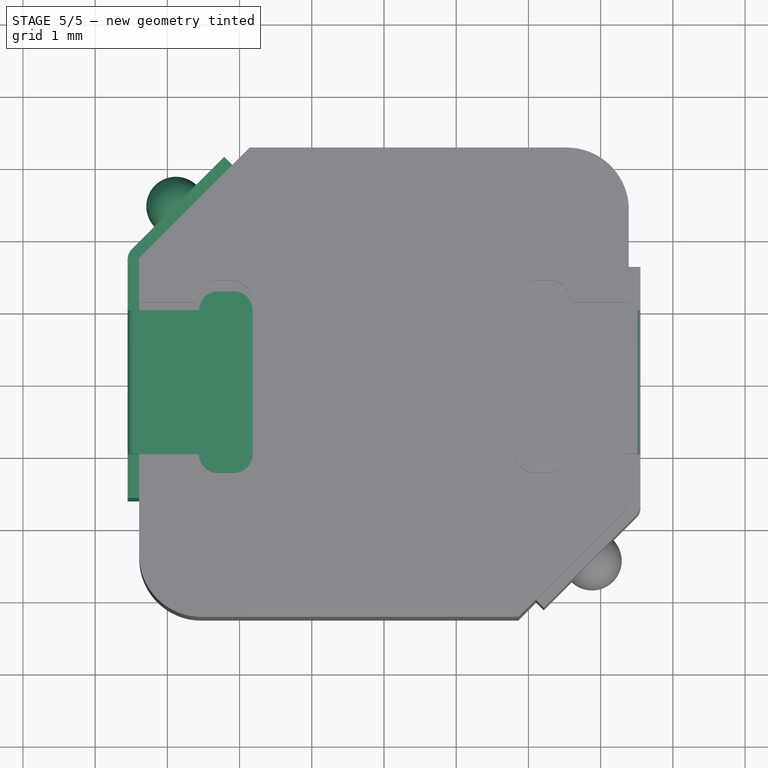
[diagram: stage 5 of 5 — top view after this stage's code; geometry added in this stage tinted green]
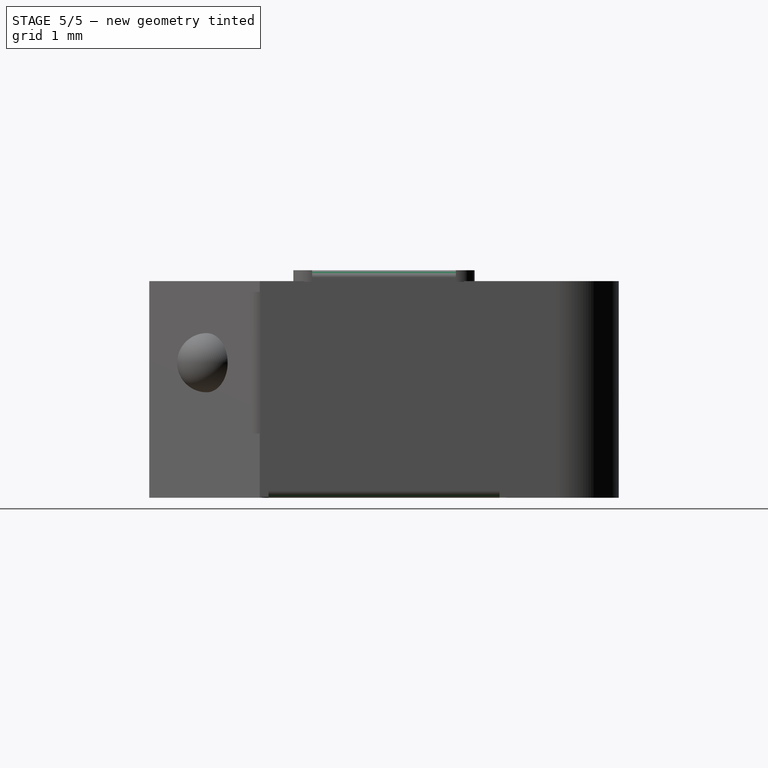
[diagram: stage 5 of 5 — right view after this stage's code; geometry added in this stage tinted green]
FEATURE [PartDesign::Fillet] Fillet
  Base = -> Sphere [Edge5,Edge66]
  BaseFeature = -> Sphere
  Placement = pos=(2.88157,-2.45471,1.87) rot=(0.678598,0.281085,0.678598;3.68962rad)
  Radius = 0.1
  SupportTransform = false
  Suppressed = false
  UseAllEdges = false
FEATURE [PartDesign::Fillet] Fillet001
  Base = -> Fillet [Edge60]
  BaseFeature = -> Fillet
  Placement = pos=(2.88157,-2.45471,1.87) rot=(0.678598,0.281085,0.678598;3.68962rad)
  Radius = 0.2
  Refine = true
  SupportTransform = false
  Suppressed = false
  UseAllEdges = false
FEATURE [PartDesign::Body] Body
  AllowCompound = false
  Group = -> [Sketch003,Pad,Sketch004,Pad001,Sketch005,Pad002,Sketch006,Pocket,Sketch007,Pad003,Sketch,Pocket001,Sphere,Fillet,Fillet001]
  Origin = -> Origin
  Tip = -> Fillet001
FEATURE [Part::FeaturePython] Array  # Draft array (typed FeaturePython)
  Angle = 360
  ArrayType = 1
  Axis = (0,0,1)
  Base = -> Body
  Center = (0,0,0)
  Count = 2
  Fuse = false
  IntervalAxis = (0,0,0)
  IntervalX = (50,0,0)
  IntervalY = (0,50,0)
  IntervalZ = (0,0,50)
  NumberCircles = 3
  NumberPolar = 2
  NumberX = 2
  NumberY = 2
  NumberZ = 1
  RadialDistance = 50
  Symmetry = 1
  TangentialDistance = 25
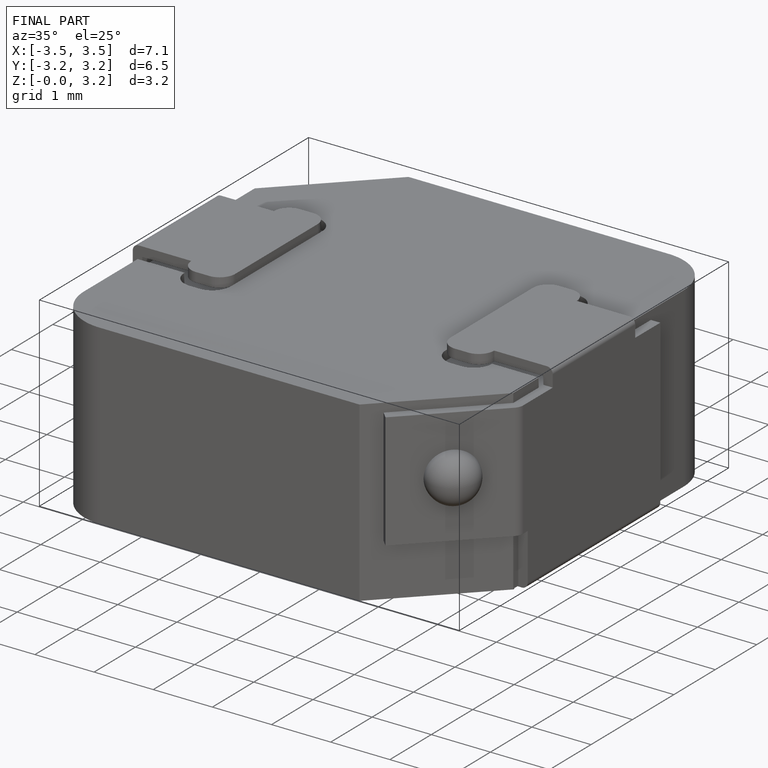
[diagram: finished part — iso view with bounding-box wireframe]
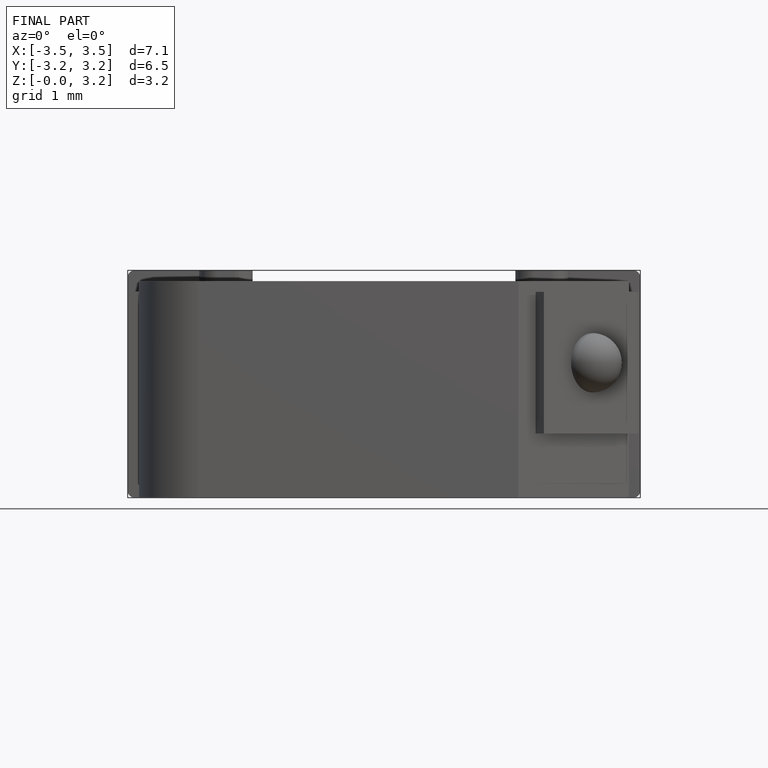
[diagram: finished part — front view with bounding-box wireframe]
